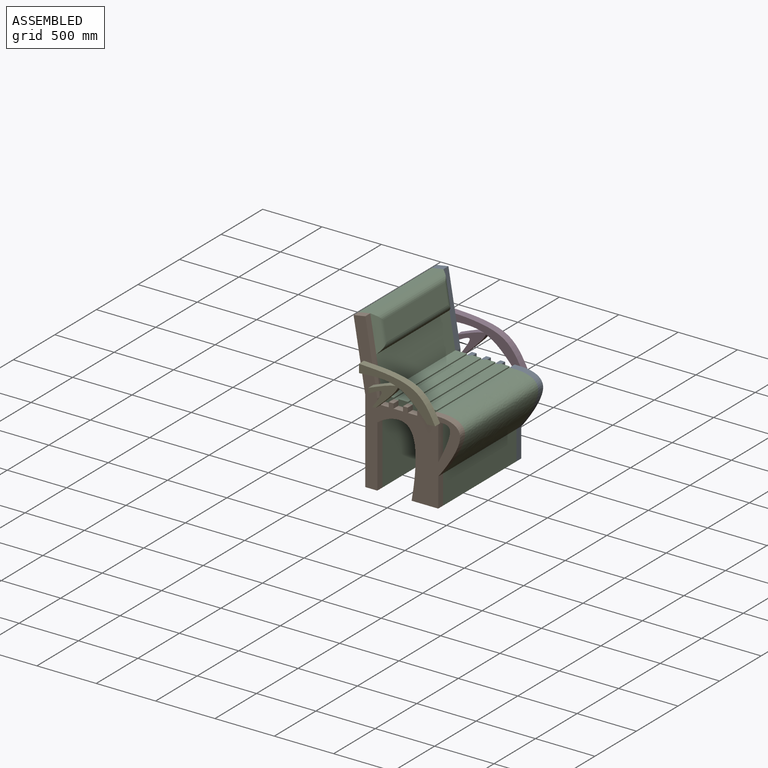
[diagram: assembled view]
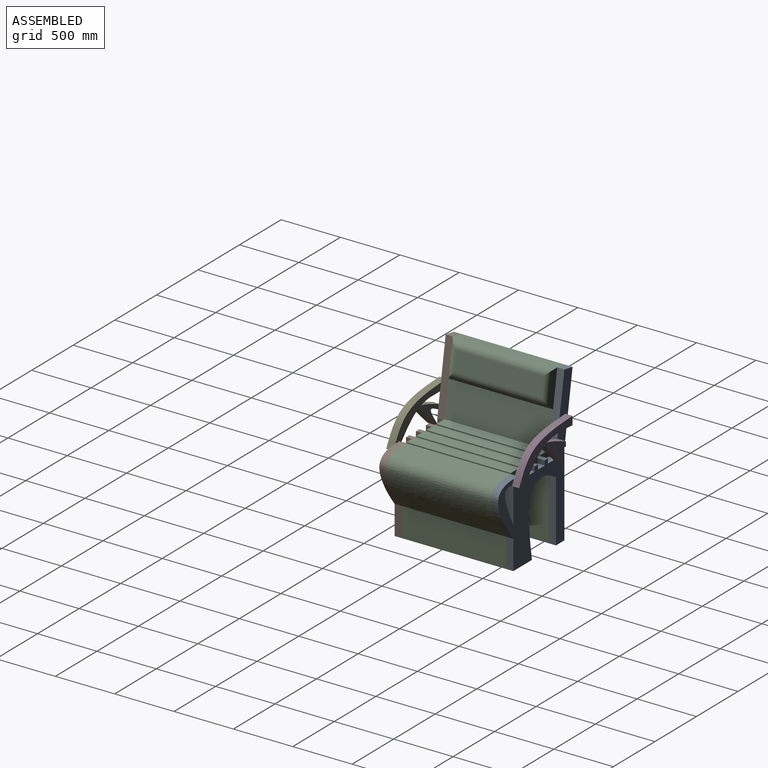
[diagram: assembled view, second angle]
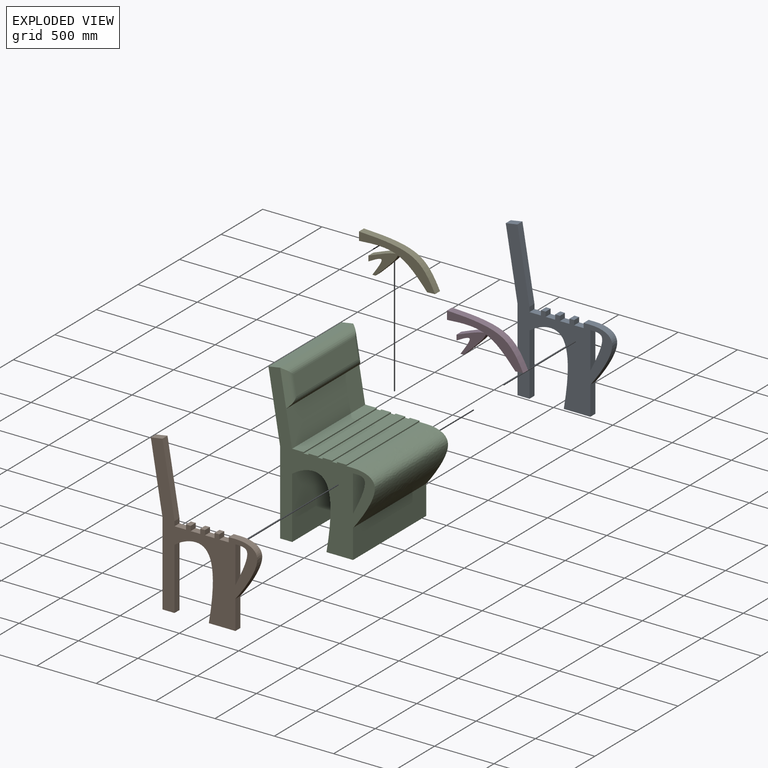
[diagram: exploded view]
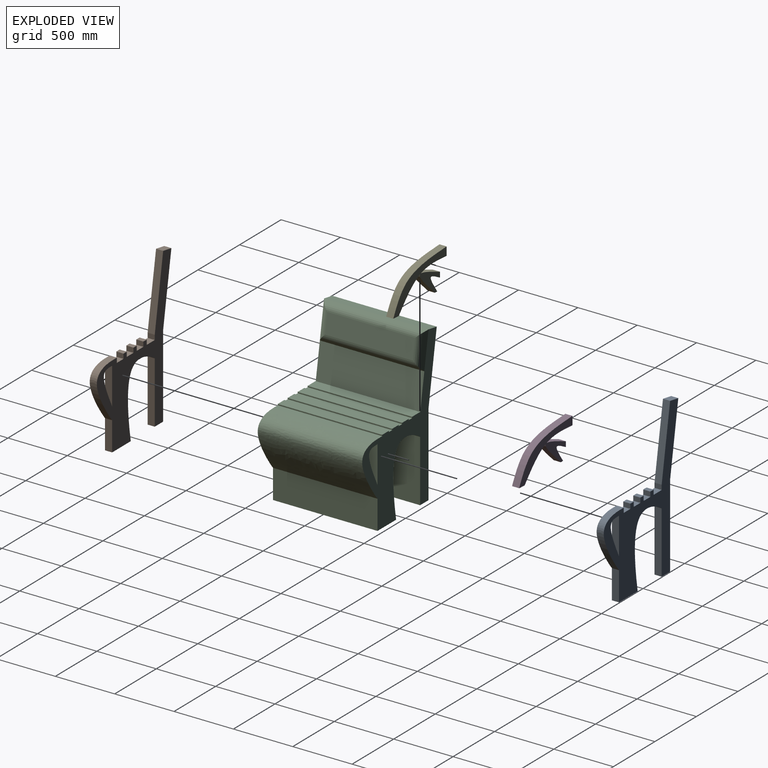
[diagram: exploded view, second angle]
ASSEMBLY  parts=5 mates=4
PART A: 30 faces, bbox 923.7x60x1300 mm
  f0: plane 310x60mm, normal (1,0,0), area 18600mm2, adj f27,f28,f29
  f1: plane 245.3x60mm, normal (1,0,0), area 14718.3mm2, adj f2,f26,f28,f29
  f2: extruded ~454.7x183.99mm, area 38130.1mm2, adj f1,f3,f28,f29
  f3: plane 60x56.35mm, normal (0,0,1), area 3380.8mm2, adj f2,f4,f28,f29
  f4: plane 60x40mm, normal (-1,0,0), area 2400mm2, adj f3,f5,f28,f29
  f5: plane 80x60mm, normal (0,0,1), area 4800mm2, adj f4,f6,f28,f29
  f6: plane 60x40mm, normal (1,0,0), area 2400mm2, adj f5,f7,f28,f29
  f7: plane 60x40mm, normal (0,0,1), area 2400mm2, adj f6,f8,f28,f29
  f8: plane 60x40mm, normal (-1,0,0), area 2400mm2, adj f7,f9,f28,f29
  f9: plane 80x60mm, normal (0,0,1), area 4800mm2, adj f8,f10,f28,f29
  f10: plane 60x40mm, normal (1,0,0), area 2400mm2, adj f9,f11,f28,f29
  f11: plane 60x40mm, normal (0,0,1), area 2400mm2, adj f10,f12,f28,f29
  f12: plane 60x40mm, normal (-1,0,0), area 2400mm2, adj f11,f13,f28,f29
  f13: plane 80x60mm, normal (0,0,1), area 4800mm2, adj f12,f14,f28,f29
  f14: plane 60x40mm, normal (1,0,0), area 2400mm2, adj f13,f15,f28,f29
  f15: plane 60x40mm, normal (0,0,1), area 2400mm2, adj f14,f16,f28,f29
  f16: plane 60x40mm, normal (-1,0,0), area 2400mm2, adj f15,f17,f28,f29
  f17: plane 96.35x60mm, normal (0,0,1), area 5780.8mm2, adj f16,f18,f28,f29
  f18: plane 60x40mm, normal (1,0,0), area 2400mm2, adj f17,f19,f28,f29
  f19: plane 600x101.42mm, normal (0.99,0,0.17), area 36510.7mm2, adj f18,f20,f28,f29
  f20: plane 98.6x60mm, normal (-0.17,0,0.99), area 6000mm2, adj f19,f21,f28,f29
  f21: plane 583.33x98.6mm, normal (-0.99,0,-0.17), area 35496.5mm2, adj f20,f22,f28,f29
  f22: plane 700x60mm, normal (-1,0,0), area 42000mm2, adj f21,f23,f28,f29
  f23: plane 101.42x60mm, normal (0,0,-1), area 6085.1mm2, adj f22,f24,f28,f29
  f24: plane 519.98x60mm, normal (1,0,0), area 31198.8mm2, adj f23,f25,f28,f29
  f25: extruded ~586.72x322.66mm, area 51410mm2, adj f24,f26,f28,f29
  f26: plane 223.8x60mm, normal (0,0,-1), area 13427.8mm2, adj f1,f25,f28,f29
  f27: extruded ~310.19x99.74mm, area 24541mm2, adj f0,f28,f29
  f28: plane 1300x923.69mm, normal (0,-1,0), area 336811.9mm2, adj f0,f1,f2,f3,f4,f5,f6,f7
  f29: plane 1300x923.69mm, normal (0,1,0), area 336811.9mm2, adj f0,f1,f2,f3,f4,f5,f6,f7
PART B: same geometry as A
PART C: 39 faces, bbox 923.7x880x1300 mm
  f0: extruded ~880x310.19mm, area 359934.2mm2, adj f15,f16,f29
  f1: plane 880x245.3mm, normal (1,0,0), area 215868mm2, adj f2,f14,f16,f29
  f2: extruded ~880x454.7mm, area 559241.5mm2, adj f1,f3,f16,f29
  f3: plane 880x56.35mm, normal (0,0,1), area 49584.7mm2, adj f2,f16,f24,f29
  f4: plane 880x40mm, normal (0,0,1), area 35200mm2, adj f16,f21,f23,f29
  f5: plane 880x40mm, normal (0,0,1), area 35200mm2, adj f16,f18,f20,f29
  f6: plane 880x40mm, normal (0,0,1), area 35200mm2, adj f16,f17,f27,f29
  f7: plane 880x300mm, normal (0.99,0,0.17), area 267744.9mm2, adj f16,f26,f29,f31
  f8: plane 880x98.6mm, normal (-0.17,0,0.99), area 88000mm2, adj f9,f16,f29,f33
  f9: plane 880x583.33mm, normal (-0.99,0,-0.17), area 520615mm2, adj f8,f10,f16,f29
  f10: plane 880x700mm, normal (-1,0,0), area 616000mm2, adj f9,f11,f16,f29
  f11: plane 880x101.42mm, normal (0,0,-1), area 89248.3mm2, adj f10,f12,f16,f29
  f12: plane 880x519.98mm, normal (1,0,0), area 457581.9mm2, adj f11,f13,f16,f29
  f13: extruded ~880x586.72mm, area 754013mm2, adj f12,f14,f16,f29
  f14: plane 880x223.8mm, normal (0,0,-1), area 196940.9mm2, adj f1,f13,f16,f29
  f15: plane 880x310mm, normal (1,0,0), area 272800mm2, adj f0,f16,f29
  f16: plane 1300x923.69mm, normal (0,1,0), area 353629.2mm2, adj f0,f1,f2,f3,f4,f5,f6,f7
  f17: plane 880x10mm, normal (-1,0,0), area 8800mm2, adj f6,f16,f19,f29
  f18: plane 880x10mm, normal (1,0,0), area 8800mm2, adj f5,f16,f19,f29
  f19: plane 880x80mm, normal (0,0,1), area 70400mm2, adj f16,f17,f18,f29
  f20: plane 880x10mm, normal (-1,0,0), area 8800mm2, adj f5,f16,f22,f29
  f21: plane 880x10mm, normal (1,0,0), area 8800mm2, adj f4,f16,f22,f29
  f22: plane 880x80mm, normal (0,0,1), area 70400mm2, adj f16,f20,f21,f29
  f23: plane 880x10mm, normal (-1,0,0), area 8800mm2, adj f4,f16,f25,f29
  f24: plane 880x10mm, normal (1,0,0), area 8800mm2, adj f3,f16,f25,f29
  f25: plane 880x80mm, normal (0,0,1), area 70400mm2, adj f16,f23,f24,f29
  f26: plane 880x10mm, normal (-1,0,0), area 8800mm2, adj f7,f16,f28,f29
  f27: plane 880x10mm, normal (1,0,0), area 8800mm2, adj f6,f16,f28,f29
  f28: plane 880x96.35mm, normal (0,0,1), area 84784.7mm2, adj f16,f26,f27,f29
  f29: plane 1300x923.69mm, normal (0,-1,0), area 353629.2mm2, adj f0,f1,f2,f3,f4,f5,f6,f7
  f30: plane 300x74.88mm, normal (0.63,-0.77,0.11), area 10452.4mm2, adj f29,f31,f33,f35
  f31: plane 880x28.4mm, normal (0.76,0,-0.65), area 31923mm2, adj f7,f30,f32,f37
  f32: plane 300x74.88mm, normal (0.63,0.77,0.11), area 10452.4mm2, adj f16,f31,f33,f38
  f33: plane 880x32.16mm, normal (0.51,0,0.86), area 31923mm2, adj f8,f30,f32,f36
  f34: plane 740.13x162.09mm, normal (0.99,0,0.17), area 121669.5mm2, adj f35,f36,f37,f38
  f35: cylinder r=60mm len=256.3mm, axis (0.17,0,-0.99), area 11179.3mm2, adj f30,f34,f36,f37
  f36: cylinder r=60mm len=832.06mm, axis (0,1,0), area 41325.2mm2, adj f33,f34,f35,f38
  f37: cylinder r=60mm len=832.06mm, axis (0,1,0), area 41325.2mm2, adj f31,f34,f35,f38
  f38: cylinder r=60mm len=256.3mm, axis (0.17,0,-0.99), area 11179.3mm2, adj f32,f34,f36,f37
PART D: 12 faces, bbox 641.2x60x309.8 mm
  f0: plane 71.46x60mm, normal (-1,0,0), area 4287.7mm2, adj f1,f9,f10,f11
  f1: extruded ~310.37x60mm, area 18790mm2, adj f0,f2,f10,f11
  f2: extruded ~231.14x75.41mm, area 14635.3mm2, adj f1,f3,f10,f11
  f3: plane 60x44.32mm, normal (-1,0,0), area 2659.3mm2, adj f2,f4,f10,f11
  f4: extruded ~138.61x111.64mm, area 16821.2mm2, adj f3,f5,f10,f11
  f5: plane 60x27.64mm, normal (0,0,-1), area 1658.6mm2, adj f4,f6,f10,f11
  f6: extruded ~206.76x184.11mm, area 16824.2mm2, adj f5,f7,f10,f11
  f7: extruded ~251.82x217.4mm, area 20144.3mm2, adj f6,f8,f10,f11
  f8: plane 66.02x60mm, normal (0.06,0,-1), area 3968.3mm2, adj f7,f9,f10,f11
  f9: extruded ~641.22x305.88mm, area 45978mm2, adj f0,f8,f10,f11
  f10: plane 641.22x309.76mm, normal (0,-1,0), area 67168.7mm2, adj f0,f1,f2,f3,f4,f5,f6,f7
  f11: plane 641.22x309.76mm, normal (0,1,0), area 67168.7mm2, adj f0,f1,f2,f3,f4,f5,f6,f7
PART E: same geometry as D
PLACE A t=(0,3140,0)mm
PLACE B t=(0,2200,0)mm
PLACE C t=(-282.3,3080,-703.91)mm fixed
PLACE D t=(-62.03,3200,78.34)mm
PLACE E t=(-62.03,2140,78.34)mm
MATE fastened D.f5 <-> A.f17  axis (0,0,-1) through (-180.89,3170,-43.91)mm
MATE fastened C.f29 <-> B.f29  axis (0,-1,0) through (-282.3,2200,-703.91)mm
MATE fastened A.f28 <-> C.f16  axis (0,-1,0) through (108.01,3080,-703.91)mm
MATE fastened E.f5 <-> B.f17  axis (0,0,-1) through (-180.89,2110,-43.91)mm
